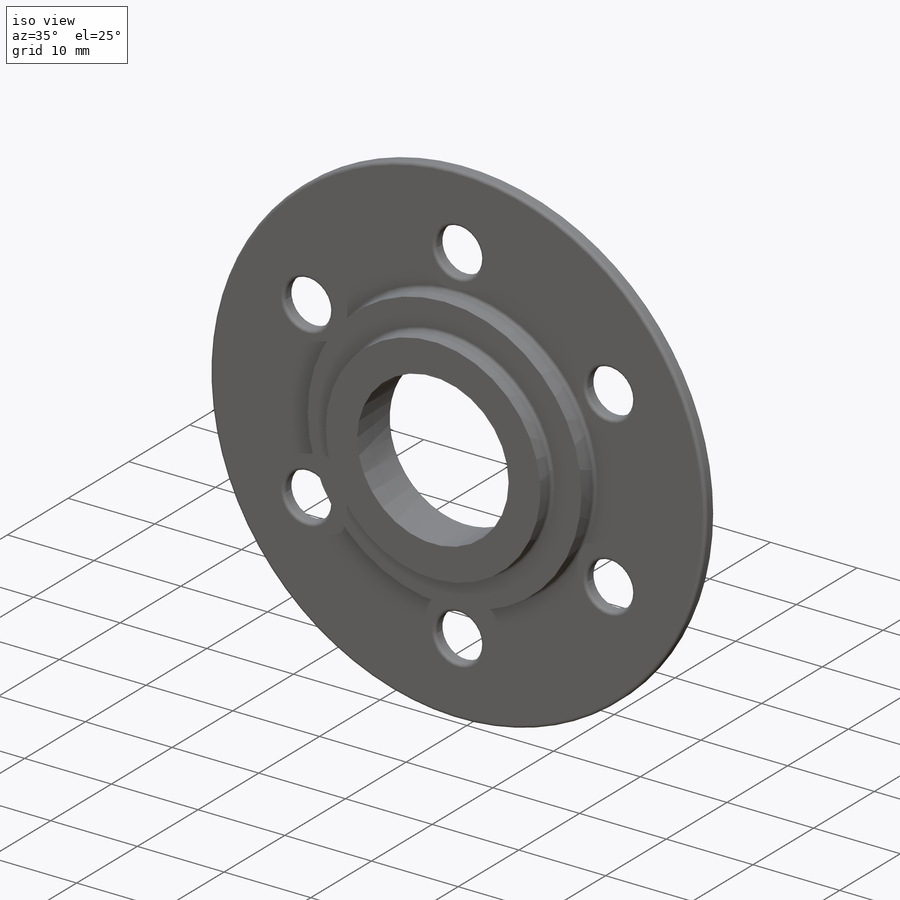
[diagram: iso view]
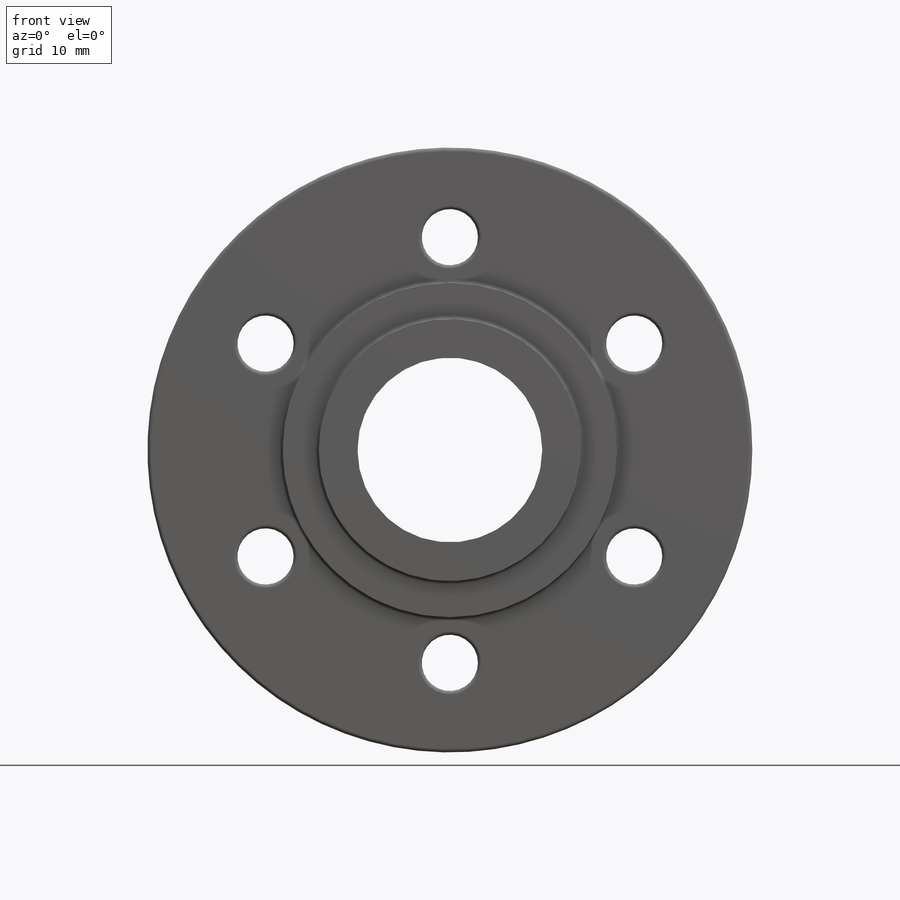
[diagram: front view]
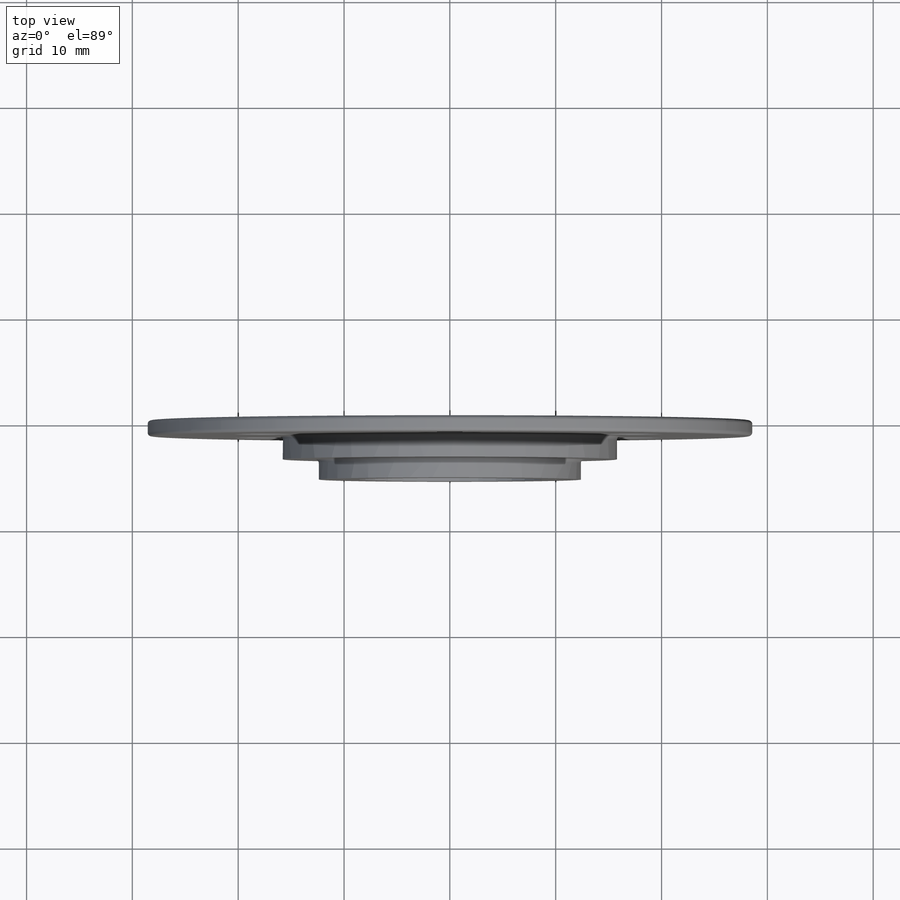
[diagram: top view]
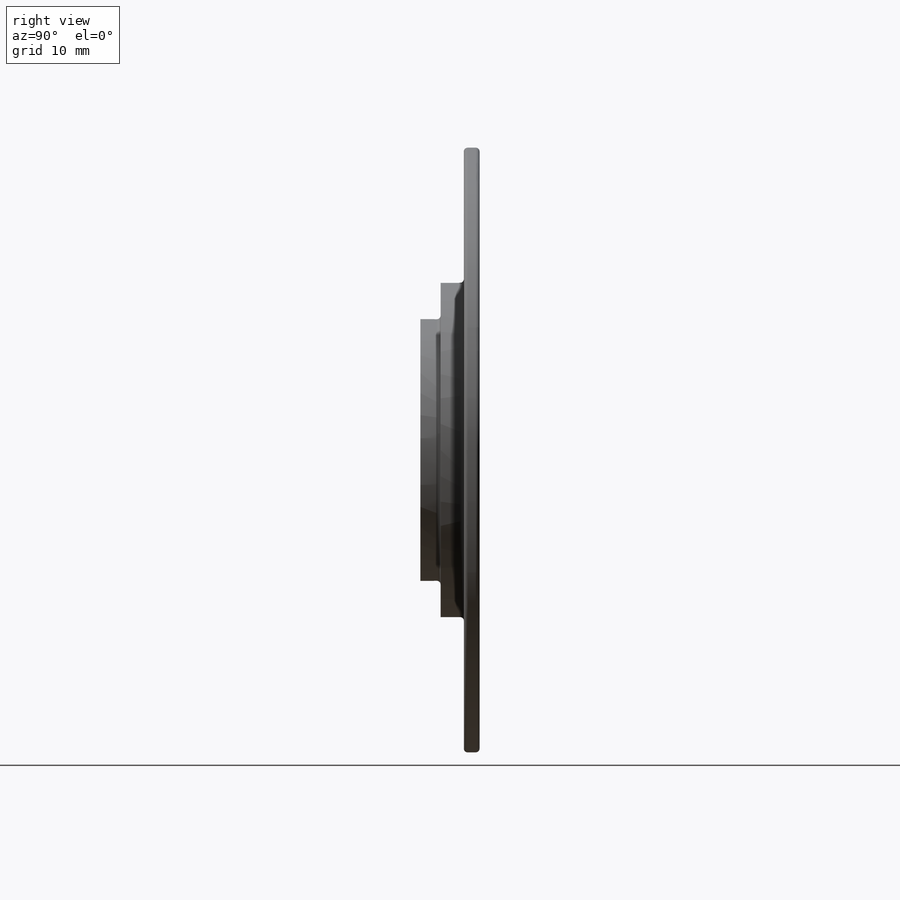
[diagram: right view]
SOLIDWORKS PART (.sldprt)
format: sldprt  version: not decoded by parser v0  size: 437,248 bytes
history: native  units: mm
features: sketch x9, extrude x3, hole x2, material x1, fillet x1 (+17 scaffold rows collapsed)
feature tree (33):
  scaffold x17  (default folders/planes/origin — collapsed)
  material  "Alloy Steel"
  sketch  "Sketch1"  dims[D1=57.15mm]
  extrude  "Extrude1"  Depth=1.4859mm
  sketch  "Sketch2"  dims[D1=31.5849mm]
  extrude  "Extrude2"  Depth=2.1971mm
  sketch  "Sketch3"  dims[D1=24.765mm]
  extrude  "Extrude3"  Depth=1.905mm
  sketch  "Sketch7"
  hole  "3/4-16 Tapped Hole1"  Diameter=17.4625mm Depth=5.588mm
  sketch  "3DSketch4"
  sketch  "Sketch8"  dims[hole-wizard template sketch: 59 standard entries collapsed; hole parameters kept: c18.Thread Major Dia.=17.4625mm c18.Thru Tap Drill Depth=5.588mm]
  sketch  "Sketch9"  dims[D1=40.2209mm D2=5.6769mm]
  hole  "#4 (0.209) Diameter Hole1"  Diameter=5.3086mm Depth=2.794mm
  sketch  "3DSketch8"
  sketch  "Sketch13"  dims[hole-wizard template sketch: 46 standard entries collapsed; hole parameters kept: c15.Hole Dia.=5.3086mm c15.Hole Depth=2.794mm c15.D3=~14.816244mm c15.Drill Angle=118.0deg]
  fillet  "Fillet1"  Radius=0.352778mm
decode coverage: 12 of 15 modeling features carry decoded parameters
note: ~ marks probable driven/reference dimensions
note: suppression state not decoded; provenance and decode notes live in map.json
